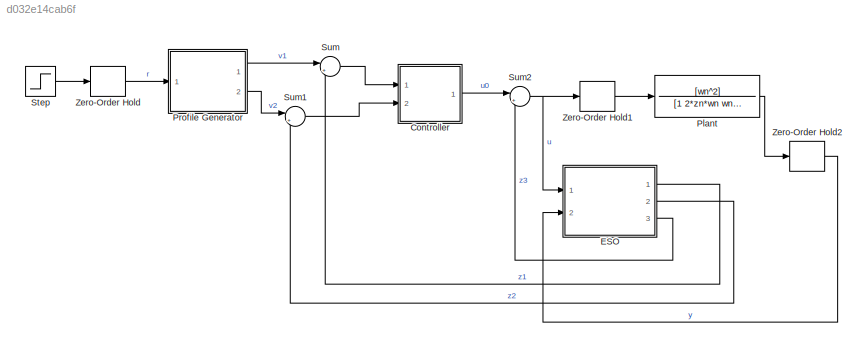
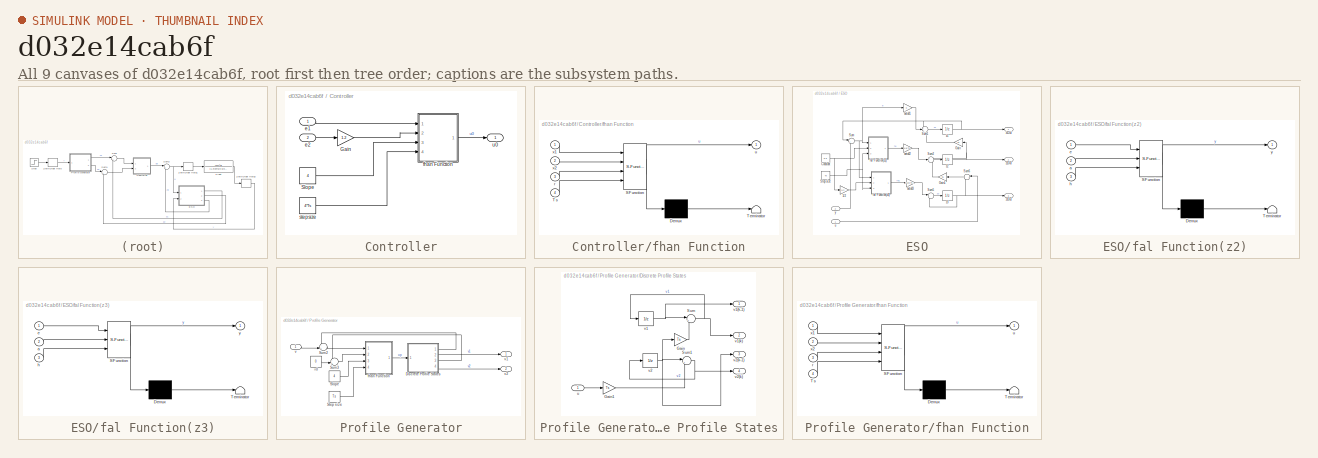
[diagram: thumbnail index - all 9 canvases of the model, root first then tree order]
MODEL slx_d032e14cab6f
KIND model
CONFIG AbsTol = auto
CONFIG FixedStep = auto
CONFIG MaxStep = auto
CONFIG MinStep = auto
CONFIG RelTol = 1e-3
CONFIG SampleTimeConstraint = Unconstrained
CONFIG Solver = VariableStepAuto
CONFIG SolverMode = Auto
CONFIG SolverName = VariableStepAuto
CONFIG StartTime = 0.0
CONFIG StopTime = 5.0
BLOCK [SubSystem] Controller
  Ports = [2, 1]
  RequestExecContextInheritance = off
  Variant = off
BLOCK [Gain] Controller/Gain
  Gain = 1.2
  OutDataTypeStr = Inherit: Inherit via internal rule
  ParamDataTypeStr = Inherit: Inherit via internal rule
  SaturateOnIntegerOverflow = off
BLOCK [Constant] Controller/Slope
  Value = 4
BLOCK [Inport] Controller/e1
  IconDisplay = Port number
BLOCK [Inport] Controller/e2
  IconDisplay = Port number
  Port = 2
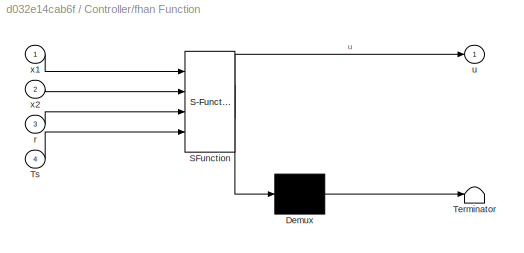
BLOCK [SubSystem] Controller/fhan Function
  ErrorFcn = Stateflow.Translate.translate
  PermitHierarchicalResolution = ExplicitOnly
  Ports = [4, 1]
  RequestExecContextInheritance = off
  SFBlockType = MATLAB Function
  TreatAsAtomicUnit = on
  Variant = off
BLOCK [Demux] Controller/fhan Function/ Demux 
  Outputs = 1
  Ports = [1, 1]
BLOCK [S-Function] Controller/fhan Function/ SFunction 
  EnableBusSupport = on
  FunctionName = sf_sfun
  PortCounts = [4 2]
  Ports = [4, 2]
  SFunctionDeploymentMode = off
  Tag = Stateflow S-Function ADRC5linESO 4
BLOCK [Terminator] Controller/fhan Function/ Terminator 
BLOCK [Inport] Controller/fhan Function/Ts
  IconDisplay = Port number
  Port = 4
BLOCK [Inport] Controller/fhan Function/r
  IconDisplay = Port number
  Port = 3
BLOCK [Outport] Controller/fhan Function/u
  IconDisplay = Port number
BLOCK [Inport] Controller/fhan Function/x1
  IconDisplay = Port number
BLOCK [Inport] Controller/fhan Function/x2
  IconDisplay = Port number
  Port = 2
BLOCK [Constant] Controller/stepsize
  Value = 4*Ts
BLOCK [Outport] Controller/u0
  IconDisplay = Port number
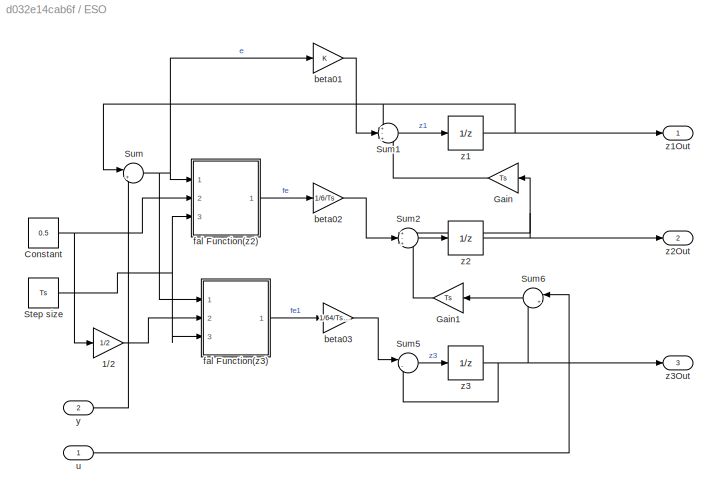
BLOCK [SubSystem] ESO
  Ports = [2, 3]
  RequestExecContextInheritance = off
  Variant = off
BLOCK [Gain] ESO/1//2
  Gain = 1/2
  OutDataTypeStr = Inherit: Inherit via internal rule
  ParamDataTypeStr = Inherit: Inherit via internal rule
  SaturateOnIntegerOverflow = off
BLOCK [Constant] ESO/Constant
  Value = 0.5
BLOCK [Gain] ESO/Gain
  Gain = Ts
  OutDataTypeStr = Inherit: Inherit via internal rule
  ParamDataTypeStr = Inherit: Inherit via internal rule
  SaturateOnIntegerOverflow = off
BLOCK [Gain] ESO/Gain1
  Gain = Ts
  OutDataTypeStr = Inherit: Inherit via internal rule
  ParamDataTypeStr = Inherit: Inherit via internal rule
  SaturateOnIntegerOverflow = off
BLOCK [Constant] ESO/Step size
  Value = Ts
BLOCK [Sum] ESO/Sum
  IconShape = round
  InputSameDT = off
  Inputs = |+-
  OutDataTypeStr = Inherit: Inherit via internal rule
  Ports = [2, 1]
  SaturateOnIntegerOverflow = off
BLOCK [Sum] ESO/Sum1
  IconShape = round
  InputSameDT = off
  Inputs = +-+
  OutDataTypeStr = Inherit: Inherit via internal rule
  Ports = [3, 1]
  SaturateOnIntegerOverflow = off
BLOCK [Sum] ESO/Sum2
  IconShape = round
  InputSameDT = off
  Inputs = +-+
  OutDataTypeStr = Inherit: Inherit via internal rule
  Ports = [3, 1]
  SaturateOnIntegerOverflow = off
BLOCK [Sum] ESO/Sum5
  IconShape = round
  InputSameDT = off
  Inputs = |-+
  OutDataTypeStr = Inherit: Inherit via internal rule
  Ports = [2, 1]
  SaturateOnIntegerOverflow = off
BLOCK [Sum] ESO/Sum6
  IconShape = round
  InputSameDT = off
  Inputs = |++
  OutDataTypeStr = Inherit: Inherit via internal rule
  Ports = [2, 1]
  SaturateOnIntegerOverflow = off
BLOCK [Gain] ESO/beta01
  OutDataTypeStr = Inherit: Inherit via internal rule
  ParamDataTypeStr = Inherit: Inherit via internal rule
  SaturateOnIntegerOverflow = off
BLOCK [Gain] ESO/beta02
  Gain = 1/6/Ts
  OutDataTypeStr = Inherit: Inherit via internal rule
  ParamDataTypeStr = Inherit: Inherit via internal rule
  SaturateOnIntegerOverflow = off
BLOCK [Gain] ESO/beta03
  Gain = 1/64/Ts^2
  OutDataTypeStr = Inherit: Inherit via internal rule
  ParamDataTypeStr = Inherit: Inherit via internal rule
  SaturateOnIntegerOverflow = off
BLOCK [SubSystem] ESO/fal Function(z2)
  ErrorFcn = Stateflow.Translate.translate
  PermitHierarchicalResolution = ExplicitOnly
  Ports = [3, 1]
  RequestExecContextInheritance = off
  SFBlockType = MATLAB Function
  TreatAsAtomicUnit = on
  Variant = off
BLOCK [Demux] ESO/fal Function(z2)/ Demux 
  Outputs = 1
  Ports = [1, 1]
BLOCK [S-Function] ESO/fal Function(z2)/ SFunction 
  EnableBusSupport = on
  FunctionName = sf_sfun
  PortCounts = [3 2]
  Ports = [3, 2]
  SFunctionDeploymentMode = off
  Tag = Stateflow S-Function ADRC5linESO 1
BLOCK [Terminator] ESO/fal Function(z2)/ Terminator 
BLOCK [Inport] ESO/fal Function(z2)/a
  IconDisplay = Port number
  Port = 2
BLOCK [Inport] ESO/fal Function(z2)/e
  IconDisplay = Port number
BLOCK [Inport] ESO/fal Function(z2)/h
  IconDisplay = Port number
  Port = 3
BLOCK [Outport] ESO/fal Function(z2)/y
  IconDisplay = Port number
BLOCK [SubSystem] ESO/fal Function(z3)
  ErrorFcn = Stateflow.Translate.translate
  PermitHierarchicalResolution = ExplicitOnly
  Ports = [3, 1]
  RequestExecContextInheritance = off
  SFBlockType = MATLAB Function
  TreatAsAtomicUnit = on
  Variant = off
BLOCK [Demux] ESO/fal Function(z3)/ Demux 
  Outputs = 1
  Ports = [1, 1]
BLOCK [S-Function] ESO/fal Function(z3)/ SFunction 
  EnableBusSupport = on
  FunctionName = sf_sfun
  PortCounts = [3 2]
  Ports = [3, 2]
  SFunctionDeploymentMode = off
  Tag = Stateflow S-Function ADRC5linESO 3
BLOCK [Terminator] ESO/fal Function(z3)/ Terminator 
BLOCK [Inport] ESO/fal Function(z3)/a
  IconDisplay = Port number
  Port = 2
BLOCK [Inport] ESO/fal Function(z3)/e
  IconDisplay = Port number
BLOCK [Inport] ESO/fal Function(z3)/h
  IconDisplay = Port number
  Port = 3
BLOCK [Outport] ESO/fal Function(z3)/y
  IconDisplay = Port number
BLOCK [Inport] ESO/u
  IconDisplay = Port number
BLOCK [Inport] ESO/y
  IconDisplay = Port number
  Port = 2
BLOCK [UnitDelay] ESO/z1
  InputProcessing = Elements as channels (sample based)
  SampleTime = Ts
BLOCK [Outport] ESO/z1Out
  IconDisplay = Port number
BLOCK [UnitDelay] ESO/z2
  InputProcessing = Elements as channels (sample based)
  SampleTime = Ts
BLOCK [Outport] ESO/z2Out
  IconDisplay = Port number
  Port = 2
BLOCK [UnitDelay] ESO/z3
  InputProcessing = Elements as channels (sample based)
  SampleTime = Ts
BLOCK [Outport] ESO/z3Out
  IconDisplay = Port number
  Port = 3
BLOCK [TransferFcn] Plant
  Denominator = [1 2*zn*wn wn^2]
  Numerator = [wn^2]
BLOCK [SubSystem] Profile Generator
  Ports = [1, 2]
  RequestExecContextInheritance = off
  Variant = off
BLOCK [Constant] Profile Generator/=0
  Value = 0
BLOCK [SubSystem] Profile Generator/Discrete Profile States
  Ports = [1, 4]
  RequestExecContextInheritance = off
  Variant = off
BLOCK [Gain] Profile Generator/Discrete Profile States/Gain
  Gain = Ts
  OutDataTypeStr = Inherit: Inherit via internal rule
  ParamDataTypeStr = Inherit: Inherit via internal rule
  SaturateOnIntegerOverflow = off
BLOCK [Gain] Profile Generator/Discrete Profile States/Gain1
  Gain = Ts
  OutDataTypeStr = Inherit: Inherit via internal rule
  ParamDataTypeStr = Inherit: Inherit via internal rule
  SaturateOnIntegerOverflow = off
BLOCK [Sum] Profile Generator/Discrete Profile States/Sum
  IconShape = round
  InputSameDT = off
  Inputs = |++
  OutDataTypeStr = Inherit: Inherit via internal rule
  Ports = [2, 1]
  SaturateOnIntegerOverflow = off
BLOCK [Sum] Profile Generator/Discrete Profile States/Sum1
  IconShape = round
  InputSameDT = off
  Inputs = |++
  OutDataTypeStr = Inherit: Inherit via internal rule
  Ports = [2, 1]
  SaturateOnIntegerOverflow = off
BLOCK [Inport] Profile Generator/Discrete Profile States/u
  IconDisplay = Port number
BLOCK [UnitDelay] Profile Generator/Discrete Profile States/v1
  InputProcessing = Elements as channels (sample based)
  SampleTime = Ts
BLOCK [Outport] Profile Generator/Discrete Profile States/v1(k)
  IconDisplay = Port number
  Port = 2
BLOCK [Outport] Profile Generator/Discrete Profile States/v1(k-1)
  IconDisplay = Port number
BLOCK [UnitDelay] Profile Generator/Discrete Profile States/v2
  InputProcessing = Elements as channels (sample based)
  SampleTime = Ts
BLOCK [Outport] Profile Generator/Discrete Profile States/v2(k)
  IconDisplay = Port number
  Port = 4
BLOCK [Outport] Profile Generator/Discrete Profile States/v2(k-1)
  IconDisplay = Port number
  Port = 3
BLOCK [Constant] Profile Generator/Slope
  Value = 4
BLOCK [Constant] Profile Generator/Step size
  Value = Ts
BLOCK [Sum] Profile Generator/Sum2
  IconShape = round
  InputSameDT = off
  Inputs = -+|
  OutDataTypeStr = Inherit: Inherit via internal rule
  Ports = [2, 1]
  SaturateOnIntegerOverflow = off
BLOCK [Sum] Profile Generator/Sum3
  IconShape = round
  InputSameDT = off
  Inputs = -+|
  OutDataTypeStr = Inherit: Inherit via internal rule
  Ports = [2, 1]
  SaturateOnIntegerOverflow = off
BLOCK [SubSystem] Profile Generator/fhan Function
  ErrorFcn = Stateflow.Translate.translate
  PermitHierarchicalResolution = ExplicitOnly
  Ports = [4, 1]
  RequestExecContextInheritance = off
  SFBlockType = MATLAB Function
  TreatAsAtomicUnit = on
  Variant = off
BLOCK [Demux] Profile Generator/fhan Function/ Demux 
  Outputs = 1
  Ports = [1, 1]
BLOCK [S-Function] Profile Generator/fhan Function/ SFunction 
  EnableBusSupport = on
  FunctionName = sf_sfun
  PortCounts = [4 2]
  Ports = [4, 2]
  SFunctionDeploymentMode = off
  Tag = Stateflow S-Function ADRC5linESO 2
BLOCK [Terminator] Profile Generator/fhan Function/ Terminator 
BLOCK [Inport] Profile Generator/fhan Function/Ts
  IconDisplay = Port number
  Port = 4
BLOCK [Inport] Profile Generator/fhan Function/r
  IconDisplay = Port number
  Port = 3
BLOCK [Outport] Profile Generator/fhan Function/u
  IconDisplay = Port number
BLOCK [Inport] Profile Generator/fhan Function/x1
  IconDisplay = Port number
BLOCK [Inport] Profile Generator/fhan Function/x2
  IconDisplay = Port number
  Port = 2
BLOCK [Inport] Profile Generator/v
  IconDisplay = Port number
BLOCK [Outport] Profile Generator/v1
  IconDisplay = Port number
BLOCK [Outport] Profile Generator/v2
  IconDisplay = Port number
  Port = 2
BLOCK [Step] Step
  SampleTime = 0
BLOCK [Sum] Sum
  IconShape = round
  InputSameDT = off
  Inputs = |+-
  OutDataTypeStr = Inherit: Inherit via internal rule
  Ports = [2, 1]
  SaturateOnIntegerOverflow = off
BLOCK [Sum] Sum1
  IconShape = round
  InputSameDT = off
  Inputs = |+-
  OutDataTypeStr = Inherit: Inherit via internal rule
  Ports = [2, 1]
  SaturateOnIntegerOverflow = off
BLOCK [Sum] Sum2
  IconShape = round
  InputSameDT = off
  Inputs = |+-
  OutDataTypeStr = Inherit: Inherit via internal rule
  Ports = [2, 1]
  SaturateOnIntegerOverflow = off
BLOCK [ZeroOrderHold] Zero-Order Hold
  SampleTime = Ts
BLOCK [ZeroOrderHold] Zero-Order Hold1
  SampleTime = Ts
BLOCK [ZeroOrderHold] Zero-Order Hold2
  SampleTime = Ts
LINE Controller/Gain:1 -> Controller/fhan Function:2
LINE Controller/Slope:1 -> Controller/fhan Function:3
LINE Controller/e1:1 -> Controller/fhan Function:1
LINE Controller/e2:1 -> Controller/Gain:1
LINE Controller/fhan Function:1 -> Controller/u0:1
LINE Controller/stepsize:1 -> Controller/fhan Function:4
LINE Controller:1 -> Sum2:1
LINE ESO/1//2:1 -> ESO/fal Function(z3):2
NET ESO/Constant:1 -> ESO/1//2:1, ESO/fal Function(z2):2
LINE ESO/Gain1:1 -> ESO/Sum2:3
LINE ESO/Gain:1 -> ESO/Sum1:3
NET ESO/Step size:1 -> ESO/fal Function(z2):3, ESO/fal Function(z3):3
LINE ESO/Sum1:1 -> ESO/z1:1
LINE ESO/Sum2:1 -> ESO/z2:1
LINE ESO/Sum5:1 -> ESO/z3:1
LINE ESO/Sum6:1 -> ESO/Gain1:1
NET ESO/Sum:1 -> ESO/beta01:1, ESO/fal Function(z2):1, ESO/fal Function(z3):1
LINE ESO/beta01:1 -> ESO/Sum1:2
LINE ESO/beta02:1 -> ESO/Sum2:2
LINE ESO/beta03:1 -> ESO/Sum5:1
LINE ESO/fal Function(z2):1 -> ESO/beta02:1
LINE ESO/fal Function(z3):1 -> ESO/beta03:1
LINE ESO/u:1 -> ESO/Sum6:1
LINE ESO/y:1 -> ESO/Sum:2
NET ESO/z1:1 -> ESO/Sum1:1, ESO/Sum:1, ESO/z1Out:1
NET ESO/z2:1 -> ESO/Gain:1, ESO/Sum2:1, ESO/z2Out:1
NET ESO/z3:1 -> ESO/Sum5:2, ESO/Sum6:2, ESO/z3Out:1
LINE ESO:1 -> Sum:2
LINE ESO:2 -> Sum1:2
LINE ESO:3 -> Sum2:2
LINE Plant:1 -> Zero-Order Hold2:1
LINE Profile Generator/=0:1 -> Profile Generator/Sum3:2
LINE Profile Generator/Discrete Profile States/Gain1:1 -> Profile Generator/Discrete Profile States/Sum1:2
LINE Profile Generator/Discrete Profile States/Gain:1 -> Profile Generator/Discrete Profile States/Sum:2
NET Profile Generator/Discrete Profile States/Sum1:1 -> Profile Generator/Discrete Profile States/v2(k):1, Profile Generator/Discrete Profile States/v2:1
NET Profile Generator/Discrete Profile States/Sum:1 -> Profile Generator/Discrete Profile States/v1(k):1, Profile Generator/Discrete Profile States/v1:1
LINE Profile Generator/Discrete Profile States/u:1 -> Profile Generator/Discrete Profile States/Gain1:1
NET Profile Generator/Discrete Profile States/v1:1 -> Profile Generator/Discrete Profile States/Sum:1, Profile Generator/Discrete Profile States/v1(k-1):1
NET Profile Generator/Discrete Profile States/v2:1 -> Profile Generator/Discrete Profile States/Gain:1, Profile Generator/Discrete Profile States/Sum1:1, Profile Generator/Discrete Profile States/v2(k-1):1
LINE Profile Generator/Discrete Profile States:1 -> Profile Generator/Sum2:1
LINE Profile Generator/Discrete Profile States:2 -> Profile Generator/v1:1
LINE Profile Generator/Discrete Profile States:3 -> Profile Generator/Sum3:1
LINE Profile Generator/Discrete Profile States:4 -> Profile Generator/v2:1
LINE Profile Generator/Slope:1 -> Profile Generator/fhan Function:3
LINE Profile Generator/Step size:1 -> Profile Generator/fhan Function:4
LINE Profile Generator/Sum2:1 -> Profile Generator/fhan Function:1
LINE Profile Generator/Sum3:1 -> Profile Generator/fhan Function:2
LINE Profile Generator/fhan Function:1 -> Profile Generator/Discrete Profile States:1
LINE Profile Generator/v:1 -> Profile Generator/Sum2:2
LINE Profile Generator:1 -> Sum:1
LINE Profile Generator:2 -> Sum1:1
LINE Step:1 -> Zero-Order Hold:1
LINE Sum1:1 -> Controller:2
NET Sum2:1 -> ESO:1, Zero-Order Hold1:1
LINE Sum:1 -> Controller:1
LINE Zero-Order Hold1:1 -> Plant:1
LINE Zero-Order Hold2:1 -> ESO:2
LINE Zero-Order Hold:1 -> Profile Generator:1
note: NET lines group one-source signal fan-out (src -> all destinations, sorted); 1:1 wires keep LINE
CHART ESO/fal Function(z2) states=1 transitions=1
  STATE_LABEL 'eML_blk_kernel()'
  STATE_LABEL 'SCRIPT:\nfunction y = fal(e,a,h)\n%#codegen\n\nae = abs(e);\nif (ae <= h)\n    a1 = 1 - a;\n    y = e/(h^a1);\nelse\n    y = (abs(e)^a)*sign(e);\nend\ny=e;        % Override for linear function (comment out for non-linear)'
CHART Profile Generator/fhan Function states=1 transitions=1
  STATE_LABEL 'eML_blk_kernel()'
  STATE_LABEL 'SCRIPT:\nfunction u = tod(x1,x2,r,Ts)\n%#codegen\nd = Ts*r;\nd0= Ts*d;\ny = x1+Ts*x2;\nya= abs(y);\na0= sqrt(d^2 + 8*r*ya);\nif (ya > d0),\n    a = x2 + (a0-d)/2*sign(y);\nelse\n    a = x2 + y/Ts;\nend\naa = abs(a);\nif (aa > d),\n    fst = r*sign(a);\nelse\n    fst = r*a/d;\nend\n   \nu = fst;'
CHART ESO/fal Function(z3) states=1 transitions=1
  STATE_LABEL 'eML_blk_kernel()'
  STATE_LABEL 'SCRIPT:\nfunction y = fal(e,a,h)\n%#codegen\n\nae = abs(e);\nif (ae <= h)\n    a1 = 1 - a;\n    y = e/(h^a1);\nelse\n    y = (abs(e)^a)*sign(e);\nend\ny = e;        % Override for linear function (comment out for non-linear)'
CHART Controller/fhan Function states=1 transitions=1
  STATE_LABEL 'eML_blk_kernel()'
  STATE_LABEL 'SCRIPT:\nfunction u = tod(x1,x2,r,Ts)\n%#codegen\nd = Ts*r;\nd0= Ts*d;\ny = x1+Ts*x2;\nya=abs(y);\na0= sqrt(d^2 + 8*r*ya);\nif (ya > d0),\n    a = x2 + (a0-d)/2*sign(y);\nelse\n    a = x2 + y/Ts;\nend\naa = abs(a);\nif (aa > d),\n    fst = r*sign(a);\nelse\n    fst = r*a/d;\nend\n   \nu = fst;'
